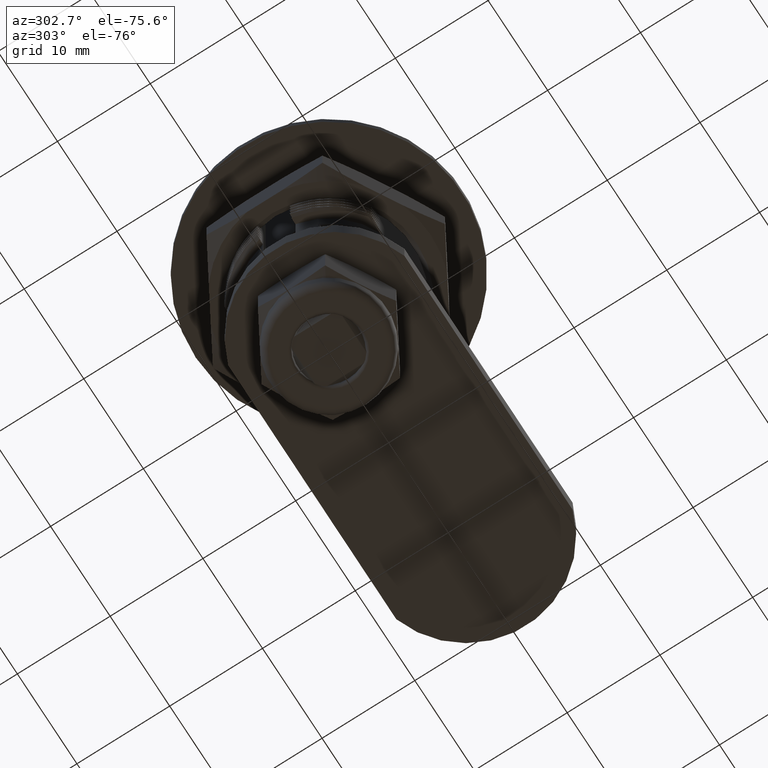
[diagram: clean part render]
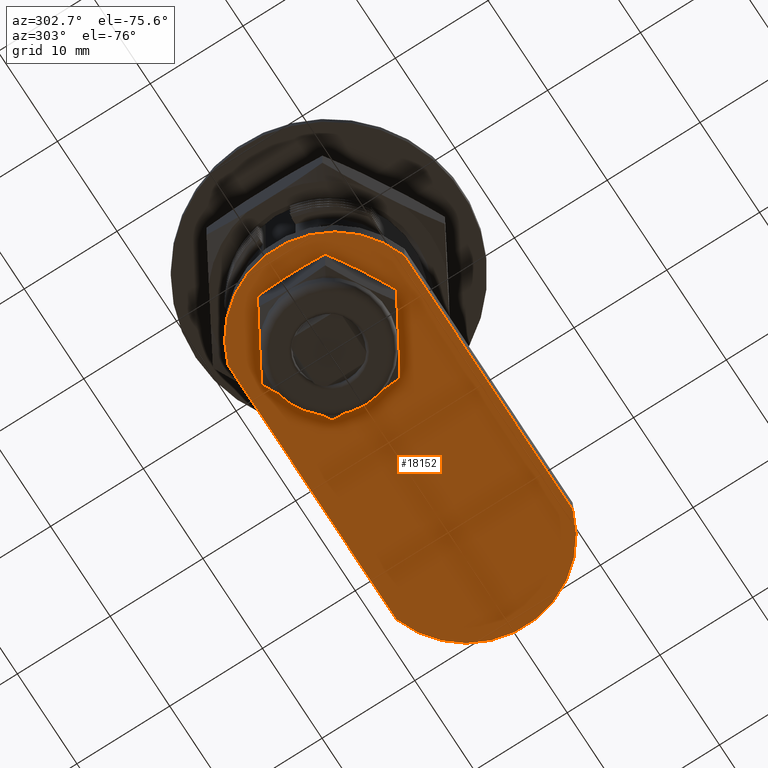
[diagram: same view with one face highlighted and labeled with its STEP entity id]
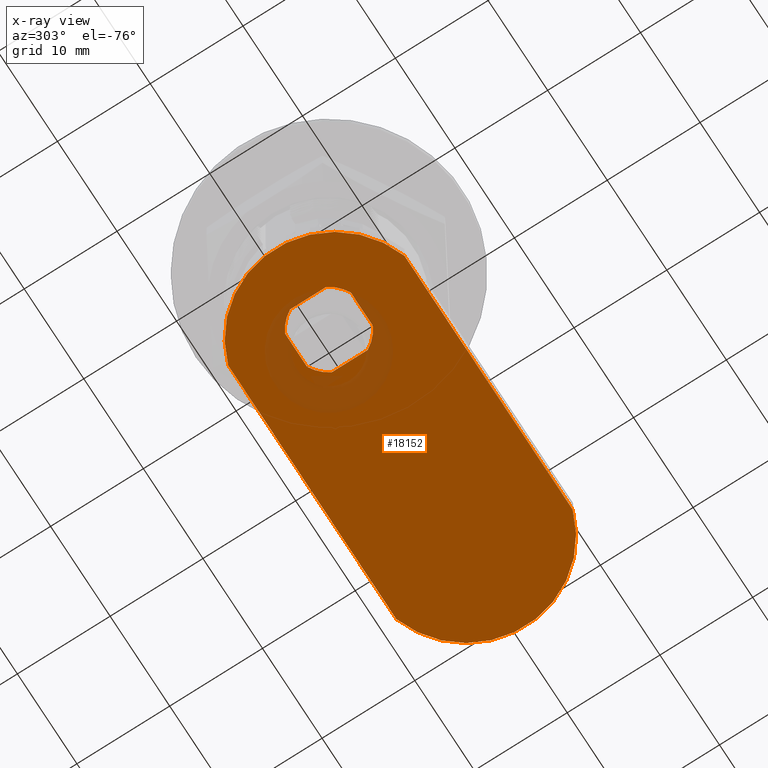
[diagram: x-ray of the same camera — body ghosted, the highlighted face saturated]
A machine part, auxiliary view. The second image highlights one B-rep face of the part: STEP entity #18152.
The next image is the same camera in x-ray: the body ghosted, the highlighted face saturated — about 8% of this face is hidden behind the body in this view.
In plain terms, the highlighted planar face has unit normal (0, 0, -1).
Its self-contained STEP definition (entity closure, byte-faithful):
#3019=LINE('',#52190,#3832);
#3023=LINE('',#52202,#3836);
#3027=LINE('',#52214,#3840);
#3030=LINE('',#52223,#3843);
#3034=LINE('',#52237,#3847);
#3038=LINE('',#52247,#3851);
#3832=VECTOR('',#20092,3.68646171823335);
#3836=VECTOR('',#20104,3.87298334620742);
#3840=VECTOR('',#20116,3.68646171823336);
#3843=VECTOR('',#20127,3.87298334620742);
#3847=VECTOR('',#20139,28.2449979983984);
#3851=VECTOR('',#20151,28.2449979983984);
#4377=PLANE('',#18756);
#4580=FACE_BOUND('',#6466,.T.);
#5436=FACE_OUTER_BOUND('',#6465,.T.);
#6465=EDGE_LOOP('',(#16321,#16322,#16323,#16324));
#6466=EDGE_LOOP('',(#16325,#16326,#16327,#16328,#16329,#16330,#16331,#16332));
#6826=CIRCLE('',#18734,4.);
#6828=CIRCLE('',#18738,4.);
#6830=CIRCLE('',#18742,4.);
#6832=CIRCLE('',#18746,4.);
#6834=CIRCLE('',#18750,10.);
#6836=CIRCLE('',#18754,10.);
#8423=VERTEX_POINT('',#52180);
#8424=VERTEX_POINT('',#52182);
#8426=VERTEX_POINT('',#52188);
#8428=VERTEX_POINT('',#52194);
#8430=VERTEX_POINT('',#52200);
#8432=VERTEX_POINT('',#52206);
#8434=VERTEX_POINT('',#52212);
#8436=VERTEX_POINT('',#52218);
#8439=VERTEX_POINT('',#52228);
#8440=VERTEX_POINT('',#52230);
#8442=VERTEX_POINT('',#52236);
#8444=VERTEX_POINT('',#52242);
#11104=EDGE_CURVE('',#8424,#8423,#6826,.T.);
#11108=EDGE_CURVE('',#8423,#8426,#3019,.T.);
#11111=EDGE_CURVE('',#8426,#8428,#6828,.T.);
#11114=EDGE_CURVE('',#8428,#8430,#3023,.T.);
#11117=EDGE_CURVE('',#8430,#8432,#6830,.T.);
#11120=EDGE_CURVE('',#8432,#8434,#3027,.T.);
#11123=EDGE_CURVE('',#8434,#8436,#6832,.T.);
#11125=EDGE_CURVE('',#8436,#8424,#3030,.T.);
#11128=EDGE_CURVE('',#8440,#8439,#6834,.T.);
#11131=EDGE_CURVE('',#8442,#8440,#3034,.T.);
#11134=EDGE_CURVE('',#8444,#8442,#6836,.T.);
#11137=EDGE_CURVE('',#8439,#8444,#3038,.T.);
#16321=ORIENTED_EDGE('',*,*,#11137,.T.);
#16322=ORIENTED_EDGE('',*,*,#11134,.T.);
#16323=ORIENTED_EDGE('',*,*,#11131,.T.);
#16324=ORIENTED_EDGE('',*,*,#11128,.T.);
#16325=ORIENTED_EDGE('',*,*,#11104,.T.);
#16326=ORIENTED_EDGE('',*,*,#11108,.T.);
#16327=ORIENTED_EDGE('',*,*,#11111,.T.);
#16328=ORIENTED_EDGE('',*,*,#11114,.T.);
#16329=ORIENTED_EDGE('',*,*,#11117,.T.);
#16330=ORIENTED_EDGE('',*,*,#11120,.T.);
#16331=ORIENTED_EDGE('',*,*,#11123,.T.);
#16332=ORIENTED_EDGE('',*,*,#11125,.T.);
#18152=ADVANCED_FACE('',(#5436,#4580),#4377,.T.);
#18734=AXIS2_PLACEMENT_3D('',#52183,#20085,#20086);
#18738=AXIS2_PLACEMENT_3D('',#52196,#20098,#20099);
#18742=AXIS2_PLACEMENT_3D('',#52208,#20110,#20111);
#18746=AXIS2_PLACEMENT_3D('',#52220,#20122,#20123);
#18750=AXIS2_PLACEMENT_3D('',#52231,#20133,#20134);
#18754=AXIS2_PLACEMENT_3D('',#52243,#20145,#20146);
#18756=AXIS2_PLACEMENT_3D('',#52248,#20152,#20153);
#20085=DIRECTION('center_axis',(-4.31772930828453E-16,-9.58728498431268E-32,
1.));
#20086=DIRECTION('ref_axis',(0.460807714779169,0.8875,1.98964297558564E-16));
#20092=DIRECTION('',(-1.,-5.04507287420866E-16,-4.31772930828453E-16));
#20098=DIRECTION('center_axis',(-4.31772930828453E-16,-9.58728498431268E-32,
1.));
#20099=DIRECTION('ref_axis',(-0.875,0.484122918275926,-3.77801314474897E-16));
#20104=DIRECTION('',(6.72678210739216E-17,-1.,-6.68284255875956E-32));
#20110=DIRECTION('center_axis',(-4.31772930828453E-16,-9.58728498431268E-32,
1.));
#20111=DIRECTION('ref_axis',(-0.46080771477917,-0.8875,-1.98964297558564E-16));
#20116=DIRECTION('',(1.,-8.50722738732076E-16,4.31772930828453E-16));
#20122=DIRECTION('center_axis',(-4.31772930828453E-16,-9.58728498431268E-32,
1.));
#20123=DIRECTION('ref_axis',(0.875,-0.484122918275928,3.77801314474896E-16));
#20127=DIRECTION('',(-6.72678210739221E-17,1.,6.68284255875954E-32));
#20133=DIRECTION('center_axis',(4.31772930828453E-16,1.23259516440783E-31,
-1.));
#20134=DIRECTION('ref_axis',(0.31224989991992,0.95,1.34821054439315E-16));
#20139=DIRECTION('',(1.,3.94710547487077E-17,4.31772930828453E-16));
#20145=DIRECTION('center_axis',(4.31772930828453E-16,9.86076131526265E-32,
-1.));
#20146=DIRECTION('ref_axis',(-0.312249899919918,-0.950000000000001,-1.34821054439314E-16));
#20151=DIRECTION('',(-1.,-5.11153732731455E-16,-4.31772930828453E-16));
#20152=DIRECTION('center_axis',(4.31772930828453E-16,9.58728498431268E-32,
-1.));
#20153=DIRECTION('ref_axis',(-1.,0.,0.));
#52180=CARTESIAN_POINT('',(1.84323085911668,3.55000000000001,-27.7));
#52182=CARTESIAN_POINT('',(3.5,1.93649167310372,-27.7));
#52183=CARTESIAN_POINT('Origin',(2.22044604925032E-15,9.99200722162641E-15,
-27.7));
#52188=CARTESIAN_POINT('',(-1.84323085911667,3.55000000000001,-27.7));
#52190=CARTESIAN_POINT('',(5.07838457044167,3.55000000000001,-27.7));
#52194=CARTESIAN_POINT('',(-3.5,1.93649167310372,-27.7));
#52196=CARTESIAN_POINT('Origin',(2.22044604925032E-15,9.99200722162641E-15,
-27.7));
#52200=CARTESIAN_POINT('',(-3.5,-1.9364916731037,-27.7));
#52202=CARTESIAN_POINT('',(-3.5,-0.968245836551849,-27.7));
#52206=CARTESIAN_POINT('',(-1.84323085911668,-3.54999999999999,-27.7));
#52208=CARTESIAN_POINT('Origin',(2.22044604925032E-15,9.99200722162641E-15,
-27.7));
#52212=CARTESIAN_POINT('',(1.84323085911668,-3.54999999999999,-27.7));
#52214=CARTESIAN_POINT('',(6.92161542955834,-3.55,-27.7));
#52218=CARTESIAN_POINT('',(3.5,-1.9364916731037,-27.7));
#52220=CARTESIAN_POINT('Origin',(2.22044604925032E-15,9.99200722162641E-15,
-27.7));
#52223=CARTESIAN_POINT('',(3.5,0.968245836551861,-27.7));
#52228=CARTESIAN_POINT('',(26.1224989991992,-9.49999999999999,-27.7));
#52230=CARTESIAN_POINT('',(26.1224989991992,9.5,-27.7));
#52231=CARTESIAN_POINT('Origin',(23.,4.44089209850063E-15,-27.7));
#52236=CARTESIAN_POINT('',(-2.12249899919917,9.5,-27.7));
#52237=CARTESIAN_POINT('',(-2.12249899919917,9.5,-27.7));
#52242=CARTESIAN_POINT('',(-2.12249899919917,-9.50000000000001,-27.7));
#52243=CARTESIAN_POINT('Origin',(1.00000000000001,-1.11022302462516E-15,
-27.7));
#52247=CARTESIAN_POINT('',(26.1224989991992,-9.49999999999999,-27.7));
#52248=CARTESIAN_POINT('Origin',(12.,2.14521802156979E-15,-27.7));